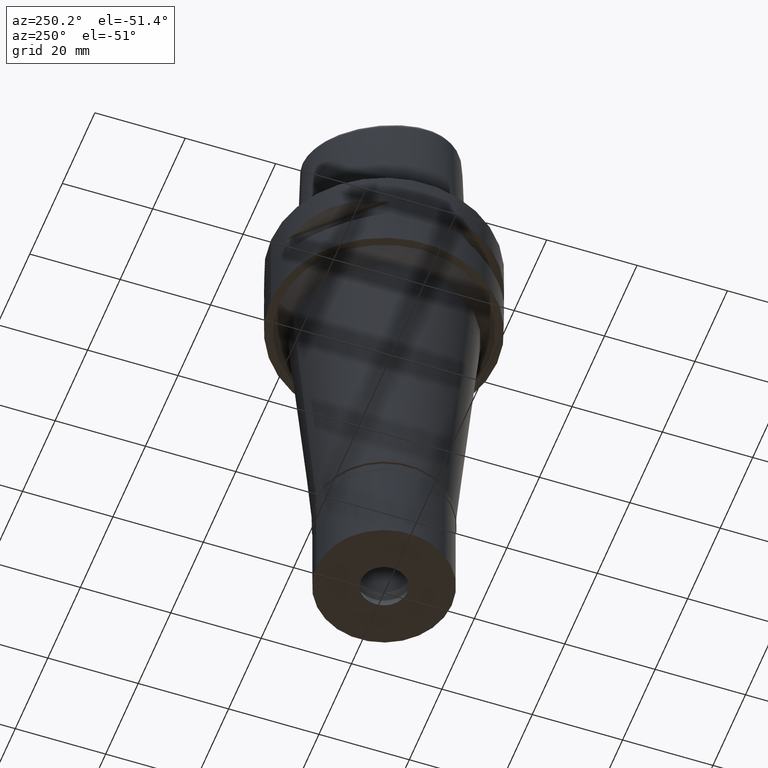
[diagram: clean part render]
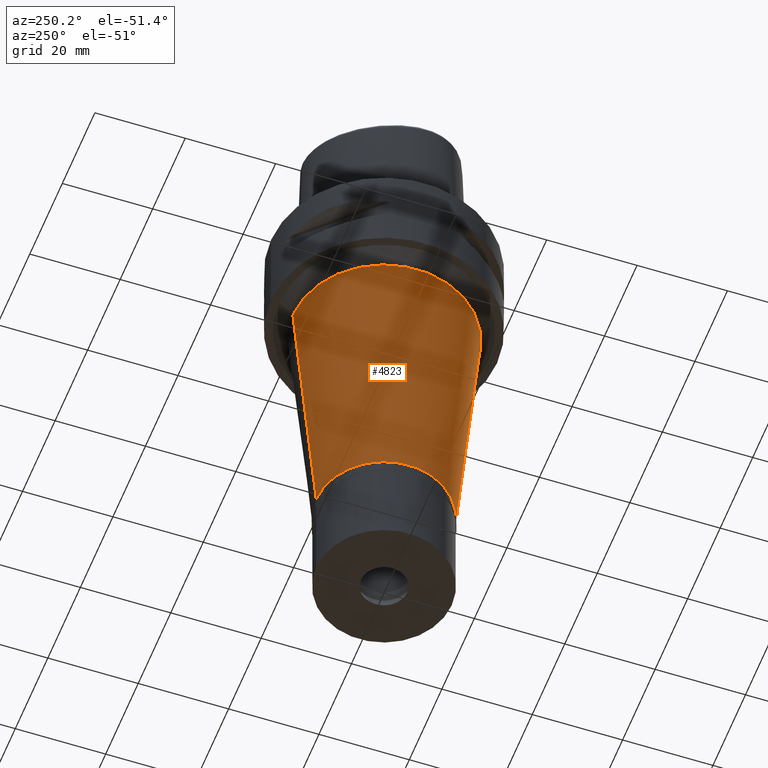
[diagram: same view with one face highlighted and labeled with its STEP entity id]
A machine part, auxiliary view. The second image highlights one B-rep face of the part: STEP entity #4823.
In plain terms, the highlighted conical surface has half-angle 5 deg.
Its self-contained STEP definition (entity closure, byte-faithful):
#151 = AXIS2_PLACEMENT_3D ( 'NONE', #2340, #837, #4225 ) ;
#468 = VECTOR ( 'NONE', #3076, 1000.000000000000114 ) ;
#469 = CARTESIAN_POINT ( 'NONE',  ( 0.0000000000000000000, 15.00000000000000000, -82.19999999999998863 ) ) ;
#780 = EDGE_CURVE ( 'NONE', #2604, #4334, #3805, .T. ) ;
#837 = DIRECTION ( 'NONE',  ( 0.0000000000000000000, 0.0000000000000000000, -1.000000000000000000 ) ) ;
#838 = EDGE_LOOP ( 'NONE', ( #4843, #3459, #3417, #2888 ) ) ;
#1016 = CIRCLE ( 'NONE', #3824, 15.00000000000000000 ) ;
#1028 = EDGE_CURVE ( 'NONE', #4334, #4241, #1016, .T. ) ;
#1129 = DIRECTION ( 'NONE',  ( 0.0000000000000000000, 1.000000000000000000, 0.0000000000000000000 ) ) ;
#1261 = DIRECTION ( 'NONE',  ( 0.0000000000000000000, 1.000000000000000000, 0.0000000000000000000 ) ) ;
#1728 = CARTESIAN_POINT ( 'NONE',  ( 0.0000000000000000000, 20.17932888073000086, -23.00000000000000000 ) ) ;
#1797 = EDGE_CURVE ( 'NONE', #3273, #2604, #2865, .T. ) ;
#1820 = AXIS2_PLACEMENT_3D ( 'NONE', #3159, #4322, #1261 ) ;
#2340 = CARTESIAN_POINT ( 'NONE',  ( 0.0000000000000000000, 0.0000000000000000000, -23.00000000000000000 ) ) ;
#2536 = CONICAL_SURFACE ( 'NONE', #1820, 17.58966444036999732, 0.08726646259969973729 ) ;
#2604 = VERTEX_POINT ( 'NONE', #1728 ) ;
#2707 = EDGE_CURVE ( 'NONE', #3273, #4241, #2911, .T. ) ;
#2724 = CARTESIAN_POINT ( 'NONE',  ( 0.0000000000000000000, 0.0000000000000000000, -82.19999999999998863 ) ) ;
#2865 = CIRCLE ( 'NONE', #151, 20.17932888073000086 ) ;
#2888 = ORIENTED_EDGE ( 'NONE', *, *, #780, .T. ) ;
#2911 = LINE ( 'NONE', #4071, #4567 ) ;
#3005 = CARTESIAN_POINT ( 'NONE',  ( 0.0000000000000000000, -20.17932888073000086, -23.00000000000000000 ) ) ;
#3076 = DIRECTION ( 'NONE',  ( 0.0000000000000000000, -0.08715574274761432594, -0.9961946980917494310 ) ) ;
#3137 = FACE_OUTER_BOUND ( 'NONE', #838, .T. ) ;
#3159 = CARTESIAN_POINT ( 'NONE',  ( 0.0000000000000000000, 0.0000000000000000000, -52.60000000000000142 ) ) ;
#3273 = VERTEX_POINT ( 'NONE', #3005 ) ;
#3357 = CARTESIAN_POINT ( 'NONE',  ( 0.0000000000000000000, -15.00000000000000000, -82.19999999999998863 ) ) ;
#3417 = ORIENTED_EDGE ( 'NONE', *, *, #1797, .T. ) ;
#3459 = ORIENTED_EDGE ( 'NONE', *, *, #2707, .F. ) ;
#3670 = DIRECTION ( 'NONE',  ( 0.0000000000000000000, 0.08715574274761432594, -0.9961946980917494310 ) ) ;
#3805 = LINE ( 'NONE', #3836, #468 ) ;
#3824 = AXIS2_PLACEMENT_3D ( 'NONE', #2724, #4604, #1129 ) ;
#3836 = CARTESIAN_POINT ( 'NONE',  ( 0.0000000000000000000, 20.17932888073000086, -23.00000000000000000 ) ) ;
#4071 = CARTESIAN_POINT ( 'NONE',  ( 0.0000000000000000000, -20.17932888073000086, -23.00000000000000000 ) ) ;
#4225 = DIRECTION ( 'NONE',  ( 0.0000000000000000000, -1.000000000000000000, 0.0000000000000000000 ) ) ;
#4241 = VERTEX_POINT ( 'NONE', #3357 ) ;
#4322 = DIRECTION ( 'NONE',  ( 0.0000000000000000000, 0.0000000000000000000, 1.000000000000000000 ) ) ;
#4334 = VERTEX_POINT ( 'NONE', #469 ) ;
#4567 = VECTOR ( 'NONE', #3670, 1000.000000000000114 ) ;
#4604 = DIRECTION ( 'NONE',  ( 0.0000000000000000000, 0.0000000000000000000, 1.000000000000000000 ) ) ;
#4823 = ADVANCED_FACE ( 'NONE', ( #3137 ), #2536, .T. ) ;
#4843 = ORIENTED_EDGE ( 'NONE', *, *, #1028, .T. ) ;